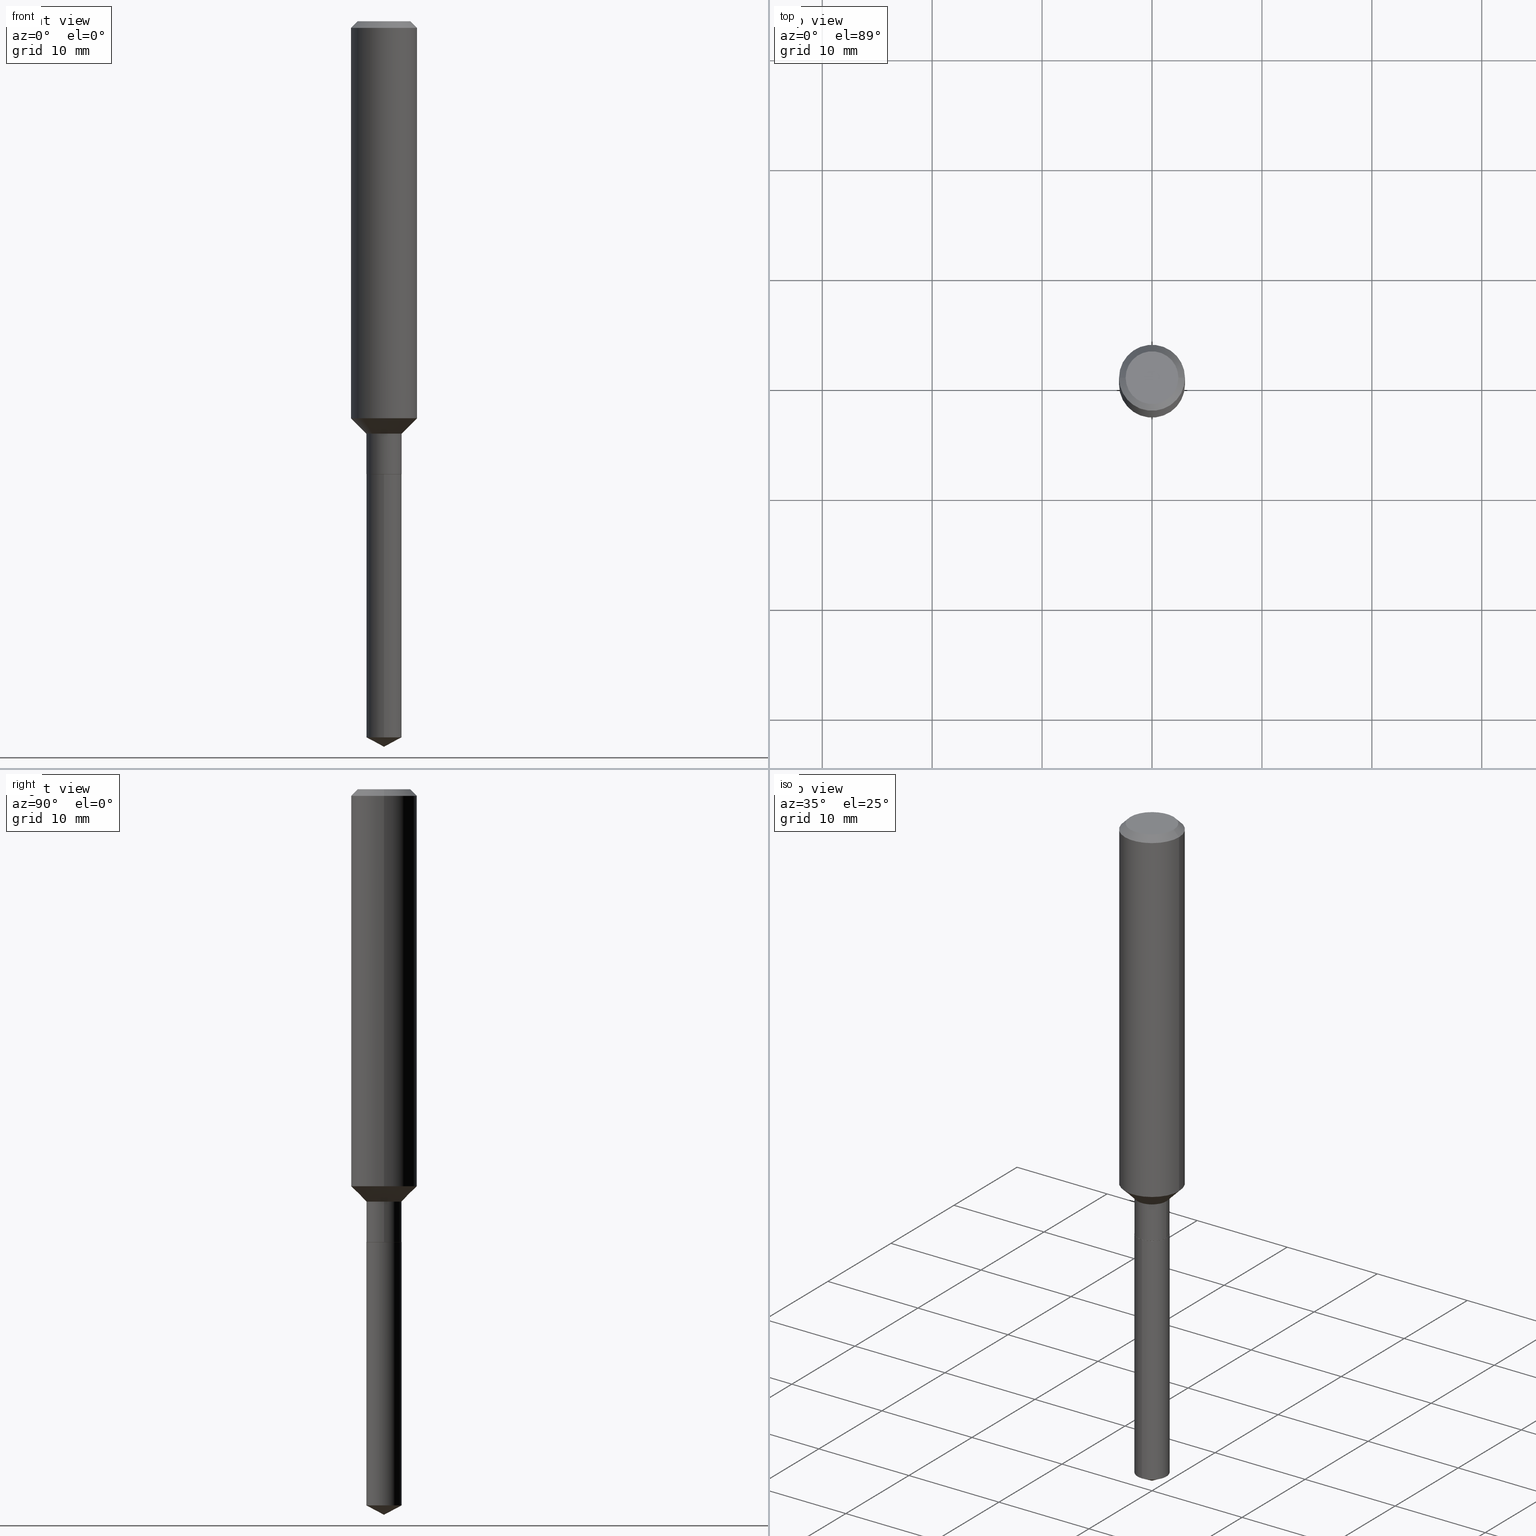
[diagram: canonical four-view strip — front | top / right | iso, engineering-drawing reading convention]
A machine part, canonical four-view strip (front | top / right | iso — engineering-drawing reading convention). The complete STEP part file that produces these views, byte-faithful:
ISO-10303-21;
HEADER;
FILE_DESCRIPTION (( 'STEP AP203' ),
    '1' );
FILE_NAME ('65002.STEP',
    '2024-04-24T19:41:37',
    ( '' ),
    ( '' ),
    'SwSTEP 2.0',
    'SolidWorks 2023',
    '' );
FILE_SCHEMA (( 'CONFIG_CONTROL_DESIGN' ));
ENDSEC;

DATA;
#1 = CARTESIAN_POINT ( 'NONE',  ( 3.966550403632290721E-29, -5.663182731603580825E-15, -1.621999999999999886 ) ) ;
#2 = DIRECTION ( 'NONE',  ( 1.000000000000000000, 0.000000000000000000, 0.000000000000000000 ) ) ;
#3 = CARTESIAN_POINT ( 'NONE',  ( 6.339023493591760755E-29, -9.094150738920952997E-15, -2.598399999999999821 ) ) ;
#4 = AXIS2_PLACEMENT_3D ( 'NONE', #259, #373, #148 ) ;
#5 = CARTESIAN_POINT ( 'NONE',  ( -0.06300000000000001432, -4.961710114740822014E-15, -1.621499999999999941 ) ) ;
#6 = DIRECTION ( 'NONE',  ( 1.000000000000000000, -6.982962677686270655E-15, 0.000000000000000000 ) ) ;
#7 = EDGE_CURVE ( 'NONE', #159, #63, #409, .T. ) ;
#8 = PERSON_AND_ORGANIZATION ( #54, #386 ) ;
#9 = CARTESIAN_POINT ( 'NONE',  ( 5.776197320209328408E-31, -8.246878922347560526E-17, -0.02362000000000014435 ) ) ;
#10 = ORIENTED_EDGE ( 'NONE', *, *, #312, .F. ) ;
#11 = LINE ( 'NONE', #161, #420 ) ;
#12 = EDGE_CURVE ( 'NONE', #135, #207, #103, .T. ) ;
#13 = CARTESIAN_POINT ( 'NONE',  ( 3.966550403632290721E-29, -5.663182731603580825E-15, -1.621999999999999886 ) ) ;
#14 = FACE_OUTER_BOUND ( 'NONE', #236, .T. ) ;
#15 = CIRCLE ( 'NONE', #410, 0.06250000000000000000 ) ;
#16 = CIRCLE ( 'NONE', #47, 0.06300000000000000044 ) ;
#17 = CARTESIAN_POINT ( 'NONE',  ( 5.776197320209328408E-31, -8.246878922347560526E-17, -0.02362000000000014435 ) ) ;
#18 = DIRECTION ( 'NONE',  ( -6.982962677686265133E-15, -1.000000000000000000, 3.541896320645526948E-15 ) ) ;
#19 = APPROVAL ( #195, 'UNSPECIFIED' ) ;
#20 = CARTESIAN_POINT ( 'NONE',  ( 0.000000000000000000, 0.000000000000000000, 0.000000000000000000 ) ) ;
#21 = CONICAL_SURFACE ( 'NONE', #470, 0.06250000000000000000, 0.7853981633975507526 ) ;
#22 = AXIS2_PLACEMENT_3D ( 'NONE', #167, #321, #475 ) ;
#23 = DIRECTION ( 'NONE',  ( -2.445468806185136597E-29, 3.491481338843145583E-15, 1.000000000000000000 ) ) ;
#24 = CC_DESIGN_PERSON_AND_ORGANIZATION_ASSIGNMENT ( #199, #193, ( #239 ) ) ;
#25 = CARTESIAN_POINT ( 'NONE',  ( 4.476419235289259333E-16, 0.06299999999999433831, -1.622000000000000108 ) ) ;
#26 = DIRECTION ( 'NONE',  ( -2.439587243531311929E-29, 3.499904071321179502E-15, 1.000000000000000000 ) ) ;
#27 = APPROVAL_DATE_TIME ( #146, #448 ) ;
#28 = CLOSED_SHELL ( 'NONE', ( #94, #320, #447, #242, #255 ) ) ;
#29 = AXIS2_PLACEMENT_3D ( 'NONE', #446, #453, #2 ) ;
#30 = ORIENTED_EDGE ( 'NONE', *, *, #121, .T. ) ;
#31 = ORIENTED_EDGE ( 'NONE', *, *, #312, .T. ) ;
#32 = APPLICATION_PROTOCOL_DEFINITION ( 'international standard', 'config_control_design', 1994, #230 ) ;
#33 = CARTESIAN_POINT ( 'NONE',  ( -0.06299999999999998657, -4.709625162076346643E-15, -1.477099999999999858 ) ) ;
#34 = APPROVAL_ROLE ( '' ) ;
#35 = DIRECTION ( 'NONE',  ( -2.438088387897960049E-29, 3.491481338843145188E-15, 1.000000000000000000 ) ) ;
#36 = VECTOR ( 'NONE', #89, 39.37007874015748143 ) ;
#37 = EDGE_CURVE ( 'NONE', #473, #342, #266, .T. ) ;
#38 = CYLINDRICAL_SURFACE ( 'NONE', #438, 0.1181000000000000799 ) ;
#39 = DIRECTION ( 'NONE',  ( -2.439587243531311929E-29, 3.499904071321179502E-15, 1.000000000000000000 ) ) ;
#40 = EDGE_CURVE ( 'NONE', #66, #295, #406, .T. ) ;
#41 = FACE_OUTER_BOUND ( 'NONE', #417, .T. ) ;
#42 = CIRCLE ( 'NONE', #251, 0.1180999999999999966 ) ;
#43 = EDGE_LOOP ( 'NONE', ( #172, #101, #30, #221 ) ) ;
#44 = DIRECTION ( 'NONE',  ( -2.445468806185136597E-29, 3.491481338843145583E-15, 1.000000000000000000 ) ) ;
#45 = DIRECTION ( 'NONE',  ( -2.445468806185136597E-29, 3.491481338843145583E-15, 1.000000000000000000 ) ) ;
#46 = FACE_OUTER_BOUND ( 'NONE', #445, .T. ) ;
#47 = AXIS2_PLACEMENT_3D ( 'NONE', #191, #39, #345 ) ;
#48 = FACE_OUTER_BOUND ( 'NONE', #78, .T. ) ;
#49 = CC_DESIGN_PERSON_AND_ORGANIZATION_ASSIGNMENT ( #300, #415, ( #439 ) ) ;
#50 = ORIENTED_EDGE ( 'NONE', *, *, #37, .T. ) ;
#51 = DIRECTION ( 'NONE',  ( -2.445468806185136597E-29, 3.491481338843145583E-15, 1.000000000000000000 ) ) ;
#52 = DIMENSIONAL_EXPONENTS ( 1.000000000000000000, 0.000000000000000000, 0.000000000000000000, 0.000000000000000000, 0.000000000000000000, 0.000000000000000000, 0.000000000000000000 ) ;
#53 = DESIGN_CONTEXT ( 'detailed design', #153, 'design' ) ;
#54 = PERSON ( 'UNSPECIFIED', 'UNSPECIFIED', 'UNSPECIFIED', ('UNSPECIFIED'), ('UNSPECIFIED'), ('UNSPECIFIED') ) ;
#55 = DIRECTION ( 'NONE',  ( -0.7071067811865459074, 2.468850131082239706E-15, -0.7071067811865492381 ) ) ;
#56 = ADVANCED_FACE ( 'NONE', ( #109 ), #288, .F. ) ;
#57 = EDGE_LOOP ( 'NONE', ( #346, #375, #232, #149 ) ) ;
#58 = AXIS2_PLACEMENT_3D ( 'NONE', #359, #59, #132 ) ;
#59 = DIRECTION ( 'NONE',  ( 2.438088387897960049E-29, -3.491481338843145188E-15, -1.000000000000000000 ) ) ;
#60 = LOCAL_TIME ( 15, 41, 37.00000000000000000, #428 ) ;
#61 = DATE_AND_TIME ( #403, #171 ) ;
#62 = PRODUCT ( '65002', '65002', '', ( #293 ) ) ;
#63 = VERTEX_POINT ( 'NONE', #186 ) ;
#64 = ORIENTED_EDGE ( 'NONE', *, *, #357, .T. ) ;
#65 = FACE_OUTER_BOUND ( 'NONE', #252, .T. ) ;
#66 = VERTEX_POINT ( 'NONE', #143 ) ;
#67 = DATE_AND_TIME ( #408, #158 ) ;
#68 = CIRCLE ( 'NONE', #476, 0.09447999999999998066 ) ;
#69 = CIRCLE ( 'NONE', #318, 0.06299999999999998657 ) ;
#70 = ORIENTED_EDGE ( 'NONE', *, *, #147, .T. ) ;
#71 = CC_DESIGN_SECURITY_CLASSIFICATION ( #239, ( #439 ) ) ;
#72 =( NAMED_UNIT ( * ) PLANE_ANGLE_UNIT ( ) SI_UNIT ( $, .RADIAN. ) );
#73 = EDGE_LOOP ( 'NONE', ( #50, #64, #311, #114 ) ) ;
#74 = SECURITY_CLASSIFICATION_LEVEL ( 'unclassified' ) ;
#75 = CARTESIAN_POINT ( 'NONE',  ( 0.06250000000000000000, -6.099617898958972494E-15, -1.621999999999999886 ) ) ;
#76 = EDGE_CURVE ( 'NONE', #119, #342, #365, .T. ) ;
#77 = CIRCLE ( 'NONE', #307, 0.1181000000000001632 ) ;
#78 = EDGE_LOOP ( 'NONE', ( #362, #433, #286 ) ) ;
#79 = CIRCLE ( 'NONE', #90, 0.06250000000000000000 ) ;
#80 = DIRECTION ( 'NONE',  ( -2.445468806185136597E-29, 3.491481338843145583E-15, 1.000000000000000000 ) ) ;
#81 = DIRECTION ( 'NONE',  ( 1.000000000000000000, -6.982962677686266711E-15, 4.876176775795936353E-29 ) ) ;
#82 = EDGE_CURVE ( 'NONE', #366, #66, #464, .T. ) ;
#83 = DIRECTION ( 'NONE',  ( 2.439587243531311368E-29, -3.499904071321179897E-15, -1.000000000000000000 ) ) ;
#84 = AXIS2_PLACEMENT_3D ( 'NONE', #229, #155, #305 ) ;
#85 = ORIENTED_EDGE ( 'NONE', *, *, #147, .F. ) ;
#86 = CARTESIAN_POINT ( 'NONE',  ( 0.06300000000000000044, -6.101363639628395575E-15, -1.621499999999999941 ) ) ;
#87 = DIRECTION ( 'NONE',  ( -2.445468806185136597E-29, 3.491481338843145583E-15, 1.000000000000000000 ) ) ;
#88 = APPROVAL ( #137, 'UNSPECIFIED' ) ;
#89 = DIRECTION ( 'NONE',  ( 6.273719981627778698E-15, 0.8829475928589315403, 0.4694715627858822571 ) ) ;
#90 = AXIS2_PLACEMENT_3D ( 'NONE', #241, #278, #130 ) ;
#91 = ORIENTED_EDGE ( 'NONE', *, *, #178, .T. ) ;
#92 = CARTESIAN_POINT ( 'NONE',  ( 6.358270590070596415E-29, -9.066827394762210825E-15, -2.598399999999999821 ) ) ;
#93 = ADVANCED_BREP_SHAPE_REPRESENTATION ( '65002', ( #231, #392, #29 ), #104 ) ;
#94 = ADVANCED_FACE ( 'NONE', ( #65 ), #416, .T. ) ;
#95 = CARTESIAN_POINT ( 'NONE',  ( -0.1181000000000000799, 8.391509709326788873E-16, -5.809262341591047988E-30 ) ) ;
#96 = CC_DESIGN_PERSON_AND_ORGANIZATION_ASSIGNMENT ( #455, #377, ( #439 ) ) ;
#97 = CARTESIAN_POINT ( 'NONE',  ( 3.966550403632290721E-29, -5.663182731603580825E-15, -1.621999999999999886 ) ) ;
#98 = ORIENTED_EDGE ( 'NONE', *, *, #376, .F. ) ;
#99 = CONICAL_SURFACE ( 'NONE', #260, 74.04434902938425012, 1.082104136236490488 ) ;
#100 = VERTEX_POINT ( 'NONE', #177 ) ;
#101 = ORIENTED_EDGE ( 'NONE', *, *, #124, .T. ) ;
#102 = PERSON_AND_ORGANIZATION ( #54, #386 ) ;
#103 = LINE ( 'NONE', #378, #430 ) ;
#104 =( GEOMETRIC_REPRESENTATION_CONTEXT ( 3 ) GLOBAL_UNCERTAINTY_ASSIGNED_CONTEXT ( ( #487 ) ) GLOBAL_UNIT_ASSIGNED_CONTEXT ( ( #372, #72, #140 ) ) REPRESENTATION_CONTEXT ( 'NONE', 'WORKASPACE' ) );
#105 = LINE ( 'NONE', #75, #237 ) ;
#106 = APPROVAL_DATE_TIME ( #61, #88 ) ;
#107 = DIRECTION ( 'NONE',  ( 1.000000000000000000, -6.982962677686265922E-15, 4.876176775795935793E-29 ) ) ;
#108 = EDGE_CURVE ( 'NONE', #462, #66, #297, .T. ) ;
#109 = FACE_OUTER_BOUND ( 'NONE', #330, .T. ) ;
#110 = LINE ( 'NONE', #387, #118 ) ;
#111 = COORDINATED_UNIVERSAL_TIME_OFFSET ( 5, 0, .BEHIND. ) ;
#112 = PRODUCT_DEFINITION ( 'UNKNOWN', '', #439, #53 ) ;
#113 = DIRECTION ( 'NONE',  ( 1.000000000000000000, -6.982962677686270655E-15, 0.000000000000000000 ) ) ;
#114 = ORIENTED_EDGE ( 'NONE', *, *, #250, .F. ) ;
#115 = CARTESIAN_POINT ( 'NONE',  ( 0.000000000000000000, 0.000000000000000000, 0.000000000000000000 ) ) ;
#116 = APPROVAL_ROLE ( '' ) ;
#117 = CARTESIAN_POINT ( 'NONE',  ( 3.966550403632290721E-29, -5.663182731603580825E-15, -1.621999999999999886 ) ) ;
#118 = VECTOR ( 'NONE', #240, 39.37007874015748143 ) ;
#119 = VERTEX_POINT ( 'NONE', #456 ) ;
#120 = CARTESIAN_POINT ( 'NONE',  ( 0.000000000000000000, 0.000000000000000000, 0.000000000000000000 ) ) ;
#121 = EDGE_CURVE ( 'NONE', #131, #159, #105, .T. ) ;
#122 = DIRECTION ( 'NONE',  ( 1.000000000000000000, -6.982962677686272233E-15, 0.000000000000000000 ) ) ;
#123 = CARTESIAN_POINT ( 'NONE',  ( 6.339023493591760755E-29, -9.094150738920952997E-15, -2.598399999999999821 ) ) ;
#124 = EDGE_CURVE ( 'NONE', #100, #131, #15, .T. ) ;
#125 = VECTOR ( 'NONE', #442, 39.37007874015748143 ) ;
#126 = VERTEX_POINT ( 'NONE', #190 ) ;
#127 = VERTEX_POINT ( 'NONE', #5 ) ;
#128 = EDGE_CURVE ( 'NONE', #295, #327, #156, .T. ) ;
#129 = LINE ( 'NONE', #95, #471 ) ;
#130 = DIRECTION ( 'NONE',  ( 1.000000000000000000, -6.982962677686262766E-15, 0.000000000000000000 ) ) ;
#131 = VERTEX_POINT ( 'NONE', #303 ) ;
#132 = DIRECTION ( 'NONE',  ( -1.000000000000000000, 6.982962677686265922E-15, -4.876176775795935793E-29 ) ) ;
#133 = VECTOR ( 'NONE', #461, 39.37007874015748143 ) ;
#134 = CONICAL_SURFACE ( 'NONE', #22, 74.04434902938425012, 1.082104136236490488 ) ;
#135 = VERTEX_POINT ( 'NONE', #384 ) ;
#136 = AXIS2_PLACEMENT_3D ( 'NONE', #360, #363, #444 ) ;
#137 = APPROVAL_STATUS ( 'not_yet_approved' ) ;
#138 = EDGE_LOOP ( 'NONE', ( #210, #70, #224, #218 ) ) ;
#139 = EDGE_CURVE ( 'NONE', #366, #327, #157, .T. ) ;
#140 =( NAMED_UNIT ( * ) SI_UNIT ( $, .STERADIAN. ) SOLID_ANGLE_UNIT ( ) );
#141 = ORIENTED_EDGE ( 'NONE', *, *, #128, .F. ) ;
#142 = CALENDAR_DATE ( 2024, 24, 4 ) ;
#143 = CARTESIAN_POINT ( 'NONE',  ( -4.399266486941721593E-16, -0.06300000000000897937, -2.564902305805327298 ) ) ;
#144 = ORIENTED_EDGE ( 'NONE', *, *, #250, .T. ) ;
#145 = EDGE_CURVE ( 'NONE', #135, #152, #68, .T. ) ;
#146 = DATE_AND_TIME ( #142, #217 ) ;
#147 = EDGE_CURVE ( 'NONE', #127, #119, #11, .T. ) ;
#148 = DIRECTION ( 'NONE',  ( 1.000000000000000000, -6.982962677686270655E-15, 0.000000000000000000 ) ) ;
#149 = ORIENTED_EDGE ( 'NONE', *, *, #290, .F. ) ;
#150 = PERSON_AND_ORGANIZATION_ROLE ( 'design_owner' ) ;
#151 = DIRECTION ( 'NONE',  ( -2.445468806185136597E-29, 3.491481338843145583E-15, 1.000000000000000000 ) ) ;
#152 = VERTEX_POINT ( 'NONE', #272 ) ;
#153 = APPLICATION_CONTEXT ( 'configuration controlled 3d designs of mechanical parts and assemblies' ) ;
#154 = EDGE_CURVE ( 'NONE', #159, #127, #341, .T. ) ;
#155 = DIRECTION ( 'NONE',  ( -2.439587243531311929E-29, 3.499904071321179502E-15, 1.000000000000000000 ) ) ;
#156 = CIRCLE ( 'NONE', #244, 0.06300000000000000044 ) ;
#157 = LINE ( 'NONE', #388, #279 ) ;
#158 = LOCAL_TIME ( 15, 41, 37.00000000000000000, #296 ) ;
#159 = VERTEX_POINT ( 'NONE', #86 ) ;
#160 = CARTESIAN_POINT ( 'NONE',  ( 0.1180999999999999966, -9.071566814582237199E-16, -0.02362000000000014435 ) ) ;
#161 = CARTESIAN_POINT ( 'NONE',  ( -0.06299999999999998657, 4.476419235288630216E-16, -3.098929106860590303E-30 ) ) ;
#162 = ORIENTED_EDGE ( 'NONE', *, *, #145, .F. ) ;
#163 = DIRECTION ( 'NONE',  ( 1.000000000000000000, -6.982962677686267499E-15, 4.875432709231658792E-29 ) ) ;
#164 = PRODUCT_RELATED_PRODUCT_CATEGORY ( 'detail', '', ( #62 ) ) ;
#165 = AXIS2_PLACEMENT_3D ( 'NONE', #180, #367, #223 ) ;
#166 = DIRECTION ( 'NONE',  ( 2.445468806185136597E-29, -3.491481338843145583E-15, -1.000000000000000000 ) ) ;
#167 = CARTESIAN_POINT ( 'NONE',  ( -8.969817848309522983E-28, 1.287110098040710045E-13, 36.77167874015748339 ) ) ;
#168 = ORIENTED_EDGE ( 'NONE', *, *, #304, .T. ) ;
#169 = CARTESIAN_POINT ( 'NONE',  ( 3.612201973616064901E-29, -5.157267085605210158E-15, -1.477099999999999858 ) ) ;
#170 = VECTOR ( 'NONE', #181, 39.37007874015748854 ) ;
#171 = LOCAL_TIME ( 15, 41, 37.00000000000000000, #219 ) ;
#172 = ORIENTED_EDGE ( 'NONE', *, *, #324, .F. ) ;
#173 = CARTESIAN_POINT ( 'NONE',  ( 5.776197320209328408E-31, -8.246878922347560526E-17, -0.02362000000000014435 ) ) ;
#174 = DIRECTION ( 'NONE',  ( -2.439587243531311929E-29, 3.499904071321179502E-15, 1.000000000000000000 ) ) ;
#175 = ORIENTED_EDGE ( 'NONE', *, *, #369, .T. ) ;
#176 = DIRECTION ( 'NONE',  ( -2.445468806185136597E-29, 3.491481338843145583E-15, 1.000000000000000000 ) ) ;
#177 = CARTESIAN_POINT ( 'NONE',  ( -0.06250000000000000000, -5.216444294579407796E-15, -1.621999999999999886 ) ) ;
#178 = EDGE_CURVE ( 'NONE', #342, #473, #77, .T. ) ;
#179 = CLOSED_SHELL ( 'NONE', ( #310, #425, #213, #480, #489, #397, #404, #258, #414, #328, #56, #184 ) ) ;
#180 = CARTESIAN_POINT ( 'NONE',  ( 3.612201973616064901E-29, -5.157267085605210158E-15, -1.477099999999999858 ) ) ;
#181 = DIRECTION ( 'NONE',  ( -6.165590087286847073E-15, -0.8829475928589280986, 0.4694715627858883633 ) ) ;
#182 = PERSON_AND_ORGANIZATION ( #54, #386 ) ;
#183 = DIRECTION ( 'NONE',  ( 0.7071067811865459074, -7.319954787623251312E-15, -0.7071067811865492381 ) ) ;
#184 = ADVANCED_FACE ( 'NONE', ( #234 ), #21, .T. ) ;
#185 = APPROVAL_ROLE ( '' ) ;
#186 = CARTESIAN_POINT ( 'NONE',  ( 0.06299999999999998657, -5.597193734299444834E-15, -1.477099999999999858 ) ) ;
#187 = CARTESIAN_POINT ( 'NONE',  ( 0.000000000000000000, 0.000000000000000000, 0.000000000000000000 ) ) ;
#188 = AXIS2_PLACEMENT_3D ( 'NONE', #120, #196, #200 ) ;
#189 = CIRCLE ( 'NONE', #280, 0.1180999999999999966 ) ;
#190 = CARTESIAN_POINT ( 'NONE',  ( -0.1180999999999999966, -1.684526655596535031E-15, -0.02362000000000014435 ) ) ;
#191 = CARTESIAN_POINT ( 'NONE',  ( 3.966550403632290721E-29, -5.663182731603580825E-15, -1.621999999999999886 ) ) ;
#192 = ORIENTED_EDGE ( 'NONE', *, *, #40, .F. ) ;
#193 = PERSON_AND_ORGANIZATION_ROLE ( 'classification_officer' ) ;
#194 = CARTESIAN_POINT ( 'NONE',  ( 6.266842840771226956E-29, -8.963250350549775101E-15, -2.564902305805327298 ) ) ;
#195 = APPROVAL_STATUS ( 'not_yet_approved' ) ;
#196 = DIRECTION ( 'NONE',  ( -2.445468806185136597E-29, 3.491481338843145583E-15, 1.000000000000000000 ) ) ;
#197 = AXIS2_PLACEMENT_3D ( 'NONE', #169, #249, #122 ) ;
#198 = ORIENTED_EDGE ( 'NONE', *, *, #76, .F. ) ;
#199 = PERSON_AND_ORGANIZATION ( #54, #386 ) ;
#200 = DIRECTION ( 'NONE',  ( 1.000000000000000000, -6.982962677686266711E-15, 4.876176775795936353E-29 ) ) ;
#201 = CC_DESIGN_PERSON_AND_ORGANIZATION_ASSIGNMENT ( #182, #150, ( #62 ) ) ;
#202 = DIRECTION ( 'NONE',  ( 1.000000000000000000, -6.982962677686267499E-15, 4.875432709231658792E-29 ) ) ;
#203 = CARTESIAN_POINT ( 'NONE',  ( 5.776197320209328408E-31, -8.246878922347560526E-17, -0.02362000000000014435 ) ) ;
#204 = AXIS2_PLACEMENT_3D ( 'NONE', #429, #468, #6 ) ;
#205 = AXIS2_PLACEMENT_3D ( 'NONE', #203, #276, #246 ) ;
#206 = DIRECTION ( 'NONE',  ( 1.000000000000000000, -6.982962677686266711E-15, 0.000000000000000000 ) ) ;
#207 = VERTEX_POINT ( 'NONE', #160 ) ;
#208 = FACE_OUTER_BOUND ( 'NONE', #437, .T. ) ;
#209 = DIRECTION ( 'NONE',  ( 1.000000000000000000, -6.982962677686266711E-15, 0.000000000000000000 ) ) ;
#210 = ORIENTED_EDGE ( 'NONE', *, *, #154, .T. ) ;
#211 = CONICAL_SURFACE ( 'NONE', #401, 0.1180999999999999966, 0.7853981633974459475 ) ;
#212 = DIRECTION ( 'NONE',  ( 1.000000000000000000, -6.982962677686266711E-15, 4.876176775795936353E-29 ) ) ;
#213 = ADVANCED_FACE ( 'NONE', ( #469 ), #38, .T. ) ;
#214 = FACE_OUTER_BOUND ( 'NONE', #138, .T. ) ;
#215 = COORDINATED_UNIVERSAL_TIME_OFFSET ( 5, 0, .BEHIND. ) ;
#216 = DIRECTION ( 'NONE',  ( -6.982962677686265922E-15, -1.000000000000000000, 4.336266656609941617E-15 ) ) ;
#217 = LOCAL_TIME ( 15, 41, 37.00000000000000000, #215 ) ;
#218 = ORIENTED_EDGE ( 'NONE', *, *, #7, .F. ) ;
#219 = COORDINATED_UNIVERSAL_TIME_OFFSET ( 5, 0, .BEHIND. ) ;
#220 = EDGE_CURVE ( 'NONE', #63, #473, #271, .T. ) ;
#221 = ORIENTED_EDGE ( 'NONE', *, *, #265, .F. ) ;
#222 = CC_DESIGN_DATE_AND_TIME_ASSIGNMENT ( #67, #405, ( #112 ) ) ;
#223 = DIRECTION ( 'NONE',  ( 1.000000000000000000, -6.982962677686272233E-15, 0.000000000000000000 ) ) ;
#224 = ORIENTED_EDGE ( 'NONE', *, *, #369, .F. ) ;
#225 = ORIENTED_EDGE ( 'NONE', *, *, #265, .T. ) ;
#226 = DIRECTION ( 'NONE',  ( 0.7071067811866199593, -2.468850131083015945E-15, 0.7071067811864750752 ) ) ;
#227 = AXIS2_PLACEMENT_3D ( 'NONE', #368, #26, #216 ) ;
#228 = AXIS2_PLACEMENT_3D ( 'NONE', #187, #176, #333 ) ;
#229 = CARTESIAN_POINT ( 'NONE',  ( 3.966550403632290721E-29, -5.663182731603580825E-15, -1.621999999999999886 ) ) ;
#230 = APPLICATION_CONTEXT ( 'configuration controlled 3d designs of mechanical parts and assemblies' ) ;
#231 = MANIFOLD_SOLID_BREP ( 'Body-Move/Copy2[1]', #28 ) ;
#232 = ORIENTED_EDGE ( 'NONE', *, *, #40, .T. ) ;
#233 = CC_DESIGN_PERSON_AND_ORGANIZATION_ASSIGNMENT ( #287, #253, ( #112 ) ) ;
#234 = FACE_OUTER_BOUND ( 'NONE', #43, .T. ) ;
#235 = CYLINDRICAL_SURFACE ( 'NONE', #84, 0.06300000000000000044 ) ;
#236 = EDGE_LOOP ( 'NONE', ( #274, #91, #144, #485 ) ) ;
#237 = VECTOR ( 'NONE', #226, 39.37007874015748143 ) ;
#238 = DIRECTION ( 'NONE',  ( 6.982962677686265922E-15, 1.000000000000000000, -3.499904071321179897E-15 ) ) ;
#239 = SECURITY_CLASSIFICATION ( '', '', #74 ) ;
#240 = DIRECTION ( 'NONE',  ( -2.445468806185136877E-29, 3.491481338843145188E-15, 1.000000000000000000 ) ) ;
#241 = CARTESIAN_POINT ( 'NONE',  ( 3.966550403632290721E-29, -5.663182731603580825E-15, -1.621999999999999886 ) ) ;
#242 = ADVANCED_FACE ( 'NONE', ( #463 ), #235, .T. ) ;
#243 = CARTESIAN_POINT ( 'NONE',  ( -0.1181000000000001632, -4.125735492902273590E-15, -1.421999999999999931 ) ) ;
#244 = AXIS2_PLACEMENT_3D ( 'NONE', #334, #483, #413 ) ;
#245 = AXIS2_PLACEMENT_3D ( 'NONE', #194, #347, #270 ) ;
#246 = DIRECTION ( 'NONE',  ( -1.000000000000000000, 6.982962677686266711E-15, 0.000000000000000000 ) ) ;
#247 = PRODUCT_DEFINITION_SHAPE ( 'NONE', 'NONE',  #112 ) ;
#248 = LINE ( 'NONE', #323, #125 ) ;
#249 = DIRECTION ( 'NONE',  ( -2.445468806185136597E-29, 3.491481338843145583E-15, 1.000000000000000000 ) ) ;
#250 = EDGE_CURVE ( 'NONE', #473, #207, #110, .T. ) ;
#251 = AXIS2_PLACEMENT_3D ( 'NONE', #173, #477, #209 ) ;
#252 = EDGE_LOOP ( 'NONE', ( #335, #486, #141, #192 ) ) ;
#253 = PERSON_AND_ORGANIZATION_ROLE ( 'creator' ) ;
#254 = DIRECTION ( 'NONE',  ( -2.445468806185136877E-29, 3.491481338843145188E-15, 1.000000000000000000 ) ) ;
#255 = ADVANCED_FACE ( 'NONE', ( #41 ), #309, .F. ) ;
#256 = ORIENTED_EDGE ( 'NONE', *, *, #376, .T. ) ;
#257 =( LENGTH_UNIT ( ) NAMED_UNIT ( * ) SI_UNIT ( $, .METRE. ) );
#258 = ADVANCED_FACE ( 'NONE', ( #14 ), #466, .T. ) ;
#259 = CARTESIAN_POINT ( 'NONE',  ( 3.477456642395264859E-29, -4.964886463834953365E-15, -1.421999999999999931 ) ) ;
#260 = AXIS2_PLACEMENT_3D ( 'NONE', #479, #174, #18 ) ;
#261 = DIRECTION ( 'NONE',  ( 1.000000000000000000, -6.982962677686262766E-15, 0.000000000000000000 ) ) ;
#262 = DIRECTION ( 'NONE',  ( -6.982962677686265133E-15, -1.000000000000000000, 0.000000000000000000 ) ) ;
#263 = CALENDAR_DATE ( 2024, 24, 4 ) ;
#264 = DIRECTION ( 'NONE',  ( -2.439587243531311929E-29, 3.499904071321179502E-15, 1.000000000000000000 ) ) ;
#265 = EDGE_CURVE ( 'NONE', #127, #159, #400, .T. ) ;
#266 = CIRCLE ( 'NONE', #4, 0.1181000000000001632 ) ;
#267 = VECTOR ( 'NONE', #55, 39.37007874015748143 ) ;
#268 = DIRECTION ( 'NONE',  ( -2.445468806185136877E-29, 3.491481338843145188E-15, 1.000000000000000000 ) ) ;
#269 = DATE_AND_TIME ( #263, #60 ) ;
#270 = DIRECTION ( 'NONE',  ( -6.982962677686265133E-15, -1.000000000000000000, 0.000000000000000000 ) ) ;
#271 = LINE ( 'NONE', #275, #298 ) ;
#272 = CARTESIAN_POINT ( 'NONE',  ( -0.09447999999999998066, 7.009847083995354710E-16, -1.928573779297727792E-17 ) ) ;
#273 = CIRCLE ( 'NONE', #197, 0.06299999999999998657 ) ;
#274 = ORIENTED_EDGE ( 'NONE', *, *, #357, .F. ) ;
#275 = CARTESIAN_POINT ( 'NONE',  ( 0.06299999999999998657, -5.597193734299444834E-15, -1.477099999999999858 ) ) ;
#276 = DIRECTION ( 'NONE',  ( 2.445468806185136597E-29, -3.491481338843145583E-15, -1.000000000000000000 ) ) ;
#277 = ORIENTED_EDGE ( 'NONE', *, *, #124, .F. ) ;
#278 = DIRECTION ( 'NONE',  ( -2.445468806185136597E-29, 3.491481338843145583E-15, 1.000000000000000000 ) ) ;
#279 = VECTOR ( 'NONE', #313, 39.37007874015748143 ) ;
#280 = AXIS2_PLACEMENT_3D ( 'NONE', #9, #351, #206 ) ;
#281 = FACE_OUTER_BOUND ( 'NONE', #354, .T. ) ;
#282 = FACE_OUTER_BOUND ( 'NONE', #371, .T. ) ;
#283 = EDGE_CURVE ( 'NONE', #152, #135, #482, .T. ) ;
#284 = CARTESIAN_POINT ( 'NONE',  ( 4.476419235289257361E-16, 0.06299999999999104927, -2.564902305805327298 ) ) ;
#285 = CIRCLE ( 'NONE', #245, 0.06300000000000001432 ) ;
#286 = ORIENTED_EDGE ( 'NONE', *, *, #82, .F. ) ;
#287 = PERSON_AND_ORGANIZATION ( #54, #386 ) ;
#288 = PLANE ( 'NONE',  #361 ) ;
#289 = ORIENTED_EDGE ( 'NONE', *, *, #121, .F. ) ;
#290 = EDGE_CURVE ( 'NONE', #327, #295, #16, .T. ) ;
#291 = EDGE_CURVE ( 'NONE', #66, #366, #285, .T. ) ;
#292 = ORIENTED_EDGE ( 'NONE', *, *, #37, .F. ) ;
#293 = MECHANICAL_CONTEXT ( 'NONE', #230, 'mechanical' ) ;
#294 = ORIENTED_EDGE ( 'NONE', *, *, #12, .T. ) ;
#295 = VERTEX_POINT ( 'NONE', #432 ) ;
#296 = COORDINATED_UNIVERSAL_TIME_OFFSET ( 5, 0, .BEHIND. ) ;
#297 = LINE ( 'NONE', #3, #170 ) ;
#298 = VECTOR ( 'NONE', #353, 39.37007874015748143 ) ;
#299 = AXIS2_PLACEMENT_3D ( 'NONE', #355, #80, #202 ) ;
#300 = PERSON_AND_ORGANIZATION ( #54, #386 ) ;
#301 = ORIENTED_EDGE ( 'NONE', *, *, #12, .F. ) ;
#302 = ORIENTED_EDGE ( 'NONE', *, *, #291, .F. ) ;
#303 = CARTESIAN_POINT ( 'NONE',  ( 0.06250000000000000000, -6.099617898958972494E-15, -1.621999999999999886 ) ) ;
#304 = EDGE_CURVE ( 'NONE', #207, #126, #189, .T. ) ;
#305 = DIRECTION ( 'NONE',  ( -6.982962677686265922E-15, -1.000000000000000000, 4.336266656609941617E-15 ) ) ;
#306 = EDGE_LOOP ( 'NONE', ( #175, #441, #292, #407 ) ) ;
#307 = AXIS2_PLACEMENT_3D ( 'NONE', #423, #45, #113 ) ;
#308 = CC_DESIGN_APPROVAL ( #88, ( #112 ) ) ;
#309 = PLANE ( 'NONE',  #370 ) ;
#310 = ADVANCED_FACE ( 'NONE', ( #281 ), #350, .T. ) ;
#311 = ORIENTED_EDGE ( 'NONE', *, *, #304, .F. ) ;
#312 = EDGE_CURVE ( 'NONE', #119, #63, #273, .T. ) ;
#313 = DIRECTION ( 'NONE',  ( -2.439587243531311929E-29, 3.499904071321179897E-15, 1.000000000000000000 ) ) ;
#314 = DIRECTION ( 'NONE',  ( 1.000000000000000000, -6.982962677686270655E-15, 0.000000000000000000 ) ) ;
#315 = ORIENTED_EDGE ( 'NONE', *, *, #290, .T. ) ;
#316 = ORIENTED_EDGE ( 'NONE', *, *, #145, .T. ) ;
#317 = DIRECTION ( 'NONE',  ( 1.000000000000000000, -6.982962677686262766E-15, 0.000000000000000000 ) ) ;
#318 = AXIS2_PLACEMENT_3D ( 'NONE', #481, #51, #398 ) ;
#319 = PLANE ( 'NONE',  #58 ) ;
#320 = ADVANCED_FACE ( 'NONE', ( #358 ), #99, .T. ) ;
#321 = DIRECTION ( 'NONE',  ( -2.439587243531311929E-29, 3.499904071321179502E-15, 1.000000000000000000 ) ) ;
#322 = ORIENTED_EDGE ( 'NONE', *, *, #7, .T. ) ;
#323 = CARTESIAN_POINT ( 'NONE',  ( -0.06250000000000000000, -5.219093521753518997E-15, -1.621999999999999886 ) ) ;
#324 = EDGE_CURVE ( 'NONE', #100, #127, #248, .T. ) ;
#325 = CYLINDRICAL_SURFACE ( 'NONE', #343, 0.06299999999999998657 ) ;
#326 = FACE_OUTER_BOUND ( 'NONE', #443, .T. ) ;
#327 = VERTEX_POINT ( 'NONE', #25 ) ;
#328 = ADVANCED_FACE ( 'NONE', ( #396 ), #319, .F. ) ;
#329 = CARTESIAN_POINT ( 'NONE',  ( 3.966550403632290721E-29, -5.663182731603580825E-15, -1.621999999999999886 ) ) ;
#330 = EDGE_LOOP ( 'NONE', ( #98, #277 ) ) ;
#331 = CONICAL_SURFACE ( 'NONE', #165, 0.06299999999999998657, 0.7853981633974508325 ) ;
#332 = ORIENTED_EDGE ( 'NONE', *, *, #283, .F. ) ;
#333 = DIRECTION ( 'NONE',  ( 1.000000000000000000, -6.982962677686266711E-15, 4.876176775795936353E-29 ) ) ;
#334 = CARTESIAN_POINT ( 'NONE',  ( 3.966550403632290721E-29, -5.663182731603580825E-15, -1.621999999999999886 ) ) ;
#335 = ORIENTED_EDGE ( 'NONE', *, *, #291, .T. ) ;
#336 = APPLICATION_PROTOCOL_DEFINITION ( 'international standard', 'config_control_design', 1994, #153 ) ;
#337 = CARTESIAN_POINT ( 'NONE',  ( -4.399266486941951349E-16, -0.06300000000000566258, -1.621999999999999442 ) ) ;
#338 = ORIENTED_EDGE ( 'NONE', *, *, #283, .T. ) ;
#339 = APPROVAL_STATUS ( 'not_yet_approved' ) ;
#340 = DIRECTION ( 'NONE',  ( -0.7071067811865493491, 7.493145998870360471E-15, 0.7071067811865457964 ) ) ;
#341 = CIRCLE ( 'NONE', #204, 0.06300000000000000044 ) ;
#342 = VERTEX_POINT ( 'NONE', #243 ) ;
#343 = AXIS2_PLACEMENT_3D ( 'NONE', #20, #87, #212 ) ;
#344 = ORIENTED_EDGE ( 'NONE', *, *, #390, .T. ) ;
#345 = DIRECTION ( 'NONE',  ( -6.982962677686265922E-15, -1.000000000000000000, 4.336266656609941617E-15 ) ) ;
#346 = ORIENTED_EDGE ( 'NONE', *, *, #139, .F. ) ;
#347 = DIRECTION ( 'NONE',  ( -2.439587243531311929E-29, 3.499904071321179502E-15, 1.000000000000000000 ) ) ;
#348 = AXIS2_PLACEMENT_3D ( 'NONE', #451, #264, #262 ) ;
#349 = SHAPE_DEFINITION_REPRESENTATION ( #247, #93 ) ;
#350 = CONICAL_SURFACE ( 'NONE', #411, 0.06250000000000000000, 0.7853981633975507526 ) ;
#351 = DIRECTION ( 'NONE',  ( -2.445468806185136597E-29, 3.491481338843145583E-15, 1.000000000000000000 ) ) ;
#352 = APPROVAL_DATE_TIME ( #383, #19 ) ;
#353 = DIRECTION ( 'NONE',  ( 0.7071067811865493491, -2.468850131082275993E-15, 0.7071067811865457964 ) ) ;
#354 = EDGE_LOOP ( 'NONE', ( #256, #427, #435, #289 ) ) ;
#355 = CARTESIAN_POINT ( 'NONE',  ( 4.716267017698007905E-46, -6.733579360998555036E-32, -1.928573779297252010E-17 ) ) ;
#356 = LINE ( 'NONE', #92, #36 ) ;
#357 = EDGE_CURVE ( 'NONE', #342, #126, #129, .T. ) ;
#358 = FACE_OUTER_BOUND ( 'NONE', #449, .T. ) ;
#359 = CARTESIAN_POINT ( 'NONE',  ( 2.358133508849003952E-46, -3.366789680499277518E-32, -9.642868896486260050E-18 ) ) ;
#360 = CARTESIAN_POINT ( 'NONE',  ( 3.612201973616064901E-29, -5.157267085605210158E-15, -1.477099999999999858 ) ) ;
#361 = AXIS2_PLACEMENT_3D ( 'NONE', #1, #35, #107 ) ;
#362 = ORIENTED_EDGE ( 'NONE', *, *, #419, .F. ) ;
#363 = DIRECTION ( 'NONE',  ( -2.445468806185136597E-29, 3.491481338843145583E-15, 1.000000000000000000 ) ) ;
#364 = ORIENTED_EDGE ( 'NONE', *, *, #178, .F. ) ;
#365 = LINE ( 'NONE', #33, #385 ) ;
#366 = VERTEX_POINT ( 'NONE', #284 ) ;
#367 = DIRECTION ( 'NONE',  ( -2.445468806185136597E-29, 3.491481338843145583E-15, 1.000000000000000000 ) ) ;
#368 = CARTESIAN_POINT ( 'NONE',  ( 3.966550403632290721E-29, -5.663182731603580825E-15, -1.621999999999999886 ) ) ;
#369 = EDGE_CURVE ( 'NONE', #63, #119, #69, .T. ) ;
#370 = AXIS2_PLACEMENT_3D ( 'NONE', #13, #83, #238 ) ;
#371 = EDGE_LOOP ( 'NONE', ( #85, #225, #322, #10 ) ) ;
#372 =( CONVERSION_BASED_UNIT ( 'INCH', #459 ) LENGTH_UNIT ( ) NAMED_UNIT ( #52 ) );
#373 = DIRECTION ( 'NONE',  ( -2.445468806185136597E-29, 3.491481338843145583E-15, 1.000000000000000000 ) ) ;
#374 = FACE_OUTER_BOUND ( 'NONE', #306, .T. ) ;
#375 = ORIENTED_EDGE ( 'NONE', *, *, #82, .T. ) ;
#376 = EDGE_CURVE ( 'NONE', #131, #100, #79, .T. ) ;
#377 = PERSON_AND_ORGANIZATION_ROLE ( 'creator' ) ;
#378 = CARTESIAN_POINT ( 'NONE',  ( 0.1180999999999999966, -8.926936027602933910E-16, -0.02362000000000014435 ) ) ;
#379 = CONICAL_SURFACE ( 'NONE', #136, 0.06299999999999998657, 0.7853981633974508325 ) ;
#380 = CARTESIAN_POINT ( 'NONE',  ( 3.965327669229198480E-29, -5.661436990934160899E-15, -1.621499999999999941 ) ) ;
#381 = CARTESIAN_POINT ( 'NONE',  ( 4.716267017698007905E-46, -6.733579360998555036E-32, -1.928573779297252010E-17 ) ) ;
#382 = EDGE_CURVE ( 'NONE', #152, #126, #394, .T. ) ;
#383 = DATE_AND_TIME ( #467, #402 ) ;
#384 = CARTESIAN_POINT ( 'NONE',  ( 0.09447999999999998066, -7.704367267948738690E-16, -1.928573779296752193E-17 ) ) ;
#385 = VECTOR ( 'NONE', #340, 39.37007874015748143 ) ;
#386 = ORGANIZATION ( 'UNSPECIFIED', 'UNSPECIFIED', '' ) ;
#387 = CARTESIAN_POINT ( 'NONE',  ( 0.1181000000000000799, -8.246878922347486570E-16, 5.758764772215004644E-30 ) ) ;
#388 = CARTESIAN_POINT ( 'NONE',  ( 4.476419235289027605E-16, 0.06299999999999433831, -1.622000000000000108 ) ) ;
#389 = ORIENTED_EDGE ( 'NONE', *, *, #419, .T. ) ;
#390 = EDGE_CURVE ( 'NONE', #126, #207, #42, .T. ) ;
#391 = DIRECTION ( 'NONE',  ( 1.000000000000000000, -6.982962677686262766E-15, 0.000000000000000000 ) ) ;
#392 = MANIFOLD_SOLID_BREP ( 'Body-Move/Copy2[2]', #179 ) ;
#393 = APPROVAL_PERSON_ORGANIZATION ( #102, #88, #185 ) ;
#394 = LINE ( 'NONE', #436, #267 ) ;
#395 = APPROVAL_PERSON_ORGANIZATION ( #8, #19, #116 ) ;
#396 = FACE_OUTER_BOUND ( 'NONE', #460, .T. ) ;
#397 = ADVANCED_FACE ( 'NONE', ( #282 ), #325, .T. ) ;
#398 = DIRECTION ( 'NONE',  ( 1.000000000000000000, -6.982962677686272233E-15, 0.000000000000000000 ) ) ;
#399 = DIRECTION ( 'NONE',  ( -2.445468806185136877E-29, 3.491481338843145188E-15, 1.000000000000000000 ) ) ;
#400 = CIRCLE ( 'NONE', #421, 0.06300000000000000044 ) ;
#401 = AXIS2_PLACEMENT_3D ( 'NONE', #17, #166, #474 ) ;
#402 = LOCAL_TIME ( 15, 41, 37.00000000000000000, #111 ) ;
#403 = CALENDAR_DATE ( 2024, 24, 4 ) ;
#404 = ADVANCED_FACE ( 'NONE', ( #326 ), #379, .T. ) ;
#405 = DATE_TIME_ROLE ( 'creation_date' ) ;
#406 = LINE ( 'NONE', #337, #133 ) ;
#407 = ORIENTED_EDGE ( 'NONE', *, *, #220, .F. ) ;
#408 = CALENDAR_DATE ( 2024, 24, 4 ) ;
#409 = LINE ( 'NONE', #454, #457 ) ;
#410 = AXIS2_PLACEMENT_3D ( 'NONE', #329, #151, #261 ) ;
#411 = AXIS2_PLACEMENT_3D ( 'NONE', #97, #23, #391 ) ;
#412 = CC_DESIGN_APPROVAL ( #19, ( #239 ) ) ;
#413 = DIRECTION ( 'NONE',  ( -6.982962677686265922E-15, -1.000000000000000000, 4.336266656609941617E-15 ) ) ;
#414 = ADVANCED_FACE ( 'NONE', ( #46 ), #422, .T. ) ;
#415 = PERSON_AND_ORGANIZATION_ROLE ( 'design_supplier' ) ;
#416 = CYLINDRICAL_SURFACE ( 'NONE', #227, 0.06300000000000000044 ) ;
#417 = EDGE_LOOP ( 'NONE', ( #488, #315 ) ) ;
#418 = ORIENTED_EDGE ( 'NONE', *, *, #108, .F. ) ;
#419 = EDGE_CURVE ( 'NONE', #462, #366, #356, .T. ) ;
#420 = VECTOR ( 'NONE', #268, 39.37007874015748143 ) ;
#421 = AXIS2_PLACEMENT_3D ( 'NONE', #380, #472, #314 ) ;
#422 = CONICAL_SURFACE ( 'NONE', #205, 0.1180999999999999966, 0.7853981633974459475 ) ;
#423 = CARTESIAN_POINT ( 'NONE',  ( 3.477456642395264859E-29, -4.964886463834953365E-15, -1.421999999999999931 ) ) ;
#424 = DATE_TIME_ROLE ( 'classification_date' ) ;
#425 = ADVANCED_FACE ( 'NONE', ( #208 ), #211, .T. ) ;
#426 = DIRECTION ( 'NONE',  ( -2.445468806185136597E-29, 3.491481338843145583E-15, 1.000000000000000000 ) ) ;
#427 = ORIENTED_EDGE ( 'NONE', *, *, #324, .T. ) ;
#428 = COORDINATED_UNIVERSAL_TIME_OFFSET ( 5, 0, .BEHIND. ) ;
#429 = CARTESIAN_POINT ( 'NONE',  ( 3.965327669229198480E-29, -5.661436990934160899E-15, -1.621499999999999941 ) ) ;
#430 = VECTOR ( 'NONE', #183, 39.37007874015748143 ) ;
#431 = APPROVAL_PERSON_ORGANIZATION ( #490, #448, #34 ) ;
#432 = CARTESIAN_POINT ( 'NONE',  ( -4.399266486941951349E-16, -0.06300000000000566258, -1.621999999999999442 ) ) ;
#433 = ORIENTED_EDGE ( 'NONE', *, *, #108, .T. ) ;
#434 = DIRECTION ( 'NONE',  ( -2.445468806185136597E-29, 3.491481338843145583E-15, 1.000000000000000000 ) ) ;
#435 = ORIENTED_EDGE ( 'NONE', *, *, #154, .F. ) ;
#436 = CARTESIAN_POINT ( 'NONE',  ( -0.1180999999999999966, 7.422191030112725094E-16, -0.02362000000000014435 ) ) ;
#437 = EDGE_LOOP ( 'NONE', ( #162, #294, #168, #478 ) ) ;
#438 = AXIS2_PLACEMENT_3D ( 'NONE', #115, #426, #81 ) ;
#439 = PRODUCT_DEFINITION_FORMATION_WITH_SPECIFIED_SOURCE ( 'ANY', '', #62, .NOT_KNOWN. ) ;
#440 = CARTESIAN_POINT ( 'NONE',  ( 0.1181000000000001632, -5.789574356069702416E-15, -1.421999999999999931 ) ) ;
#441 = ORIENTED_EDGE ( 'NONE', *, *, #76, .T. ) ;
#442 = DIRECTION ( 'NONE',  ( -0.7071067811866199593, 7.493145998870616062E-15, 0.7071067811864750752 ) ) ;
#443 = EDGE_LOOP ( 'NONE', ( #198, #31, #484, #364 ) ) ;
#444 = DIRECTION ( 'NONE',  ( 1.000000000000000000, -6.982962677686272233E-15, 0.000000000000000000 ) ) ;
#445 = EDGE_LOOP ( 'NONE', ( #301, #332, #452, #344 ) ) ;
#446 = CARTESIAN_POINT ( 'NONE',  ( 0.000000000000000000, 0.000000000000000000, 0.000000000000000000 ) ) ;
#447 = ADVANCED_FACE ( 'NONE', ( #48 ), #134, .T. ) ;
#448 = APPROVAL ( #339, 'UNSPECIFIED' ) ;
#449 = EDGE_LOOP ( 'NONE', ( #418, #389, #302 ) ) ;
#450 = CYLINDRICAL_SURFACE ( 'NONE', #228, 0.06299999999999998657 ) ;
#451 = CARTESIAN_POINT ( 'NONE',  ( 6.266842840771226956E-29, -8.963250350549775101E-15, -2.564902305805327298 ) ) ;
#452 = ORIENTED_EDGE ( 'NONE', *, *, #382, .T. ) ;
#453 = DIRECTION ( 'NONE',  ( 0.000000000000000000, 0.000000000000000000, 1.000000000000000000 ) ) ;
#454 = CARTESIAN_POINT ( 'NONE',  ( 0.06299999999999998657, -4.399266486942347259E-16, 3.071991368751439423E-30 ) ) ;
#455 = PERSON_AND_ORGANIZATION ( #54, #386 ) ;
#456 = CARTESIAN_POINT ( 'NONE',  ( -0.06299999999999998657, -4.961710114740822014E-15, -1.477099999999999858 ) ) ;
#457 = VECTOR ( 'NONE', #254, 39.37007874015748143 ) ;
#458 = CC_DESIGN_APPROVAL ( #448, ( #439 ) ) ;
#459 = LENGTH_MEASURE_WITH_UNIT ( LENGTH_MEASURE( 0.02539999999999999897 ), #257 );
#460 = EDGE_LOOP ( 'NONE', ( #338, #316 ) ) ;
#461 = DIRECTION ( 'NONE',  ( -2.439587243531311929E-29, 3.499904071321179897E-15, 1.000000000000000000 ) ) ;
#462 = VERTEX_POINT ( 'NONE', #123 ) ;
#463 = FACE_OUTER_BOUND ( 'NONE', #57, .T. ) ;
#464 = CIRCLE ( 'NONE', #348, 0.06300000000000001432 ) ;
#465 = CC_DESIGN_DATE_AND_TIME_ASSIGNMENT ( #269, #424, ( #239 ) ) ;
#466 = CYLINDRICAL_SURFACE ( 'NONE', #188, 0.1181000000000000799 ) ;
#467 = CALENDAR_DATE ( 2024, 24, 4 ) ;
#468 = DIRECTION ( 'NONE',  ( -2.445468806185136597E-29, 3.491481338843145583E-15, 1.000000000000000000 ) ) ;
#469 = FACE_OUTER_BOUND ( 'NONE', #73, .T. ) ;
#470 = AXIS2_PLACEMENT_3D ( 'NONE', #117, #434, #317 ) ;
#471 = VECTOR ( 'NONE', #399, 39.37007874015748143 ) ;
#472 = DIRECTION ( 'NONE',  ( -2.445468806185136597E-29, 3.491481338843145583E-15, 1.000000000000000000 ) ) ;
#473 = VERTEX_POINT ( 'NONE', #440 ) ;
#474 = DIRECTION ( 'NONE',  ( -1.000000000000000000, 6.982962677686266711E-15, 0.000000000000000000 ) ) ;
#475 = DIRECTION ( 'NONE',  ( -6.982962677686265133E-15, -1.000000000000000000, 3.541896320645526948E-15 ) ) ;
#476 = AXIS2_PLACEMENT_3D ( 'NONE', #381, #44, #163 ) ;
#477 = DIRECTION ( 'NONE',  ( -2.445468806185136597E-29, 3.491481338843145583E-15, 1.000000000000000000 ) ) ;
#478 = ORIENTED_EDGE ( 'NONE', *, *, #382, .F. ) ;
#479 = CARTESIAN_POINT ( 'NONE',  ( -8.969817848309522983E-28, 1.287110098040710045E-13, 36.77167874015748339 ) ) ;
#480 = ADVANCED_FACE ( 'NONE', ( #374 ), #331, .T. ) ;
#481 = CARTESIAN_POINT ( 'NONE',  ( 3.612201973616064901E-29, -5.157267085605210158E-15, -1.477099999999999858 ) ) ;
#482 = CIRCLE ( 'NONE', #299, 0.09447999999999998066 ) ;
#483 = DIRECTION ( 'NONE',  ( -2.439587243531311929E-29, 3.499904071321179502E-15, 1.000000000000000000 ) ) ;
#484 = ORIENTED_EDGE ( 'NONE', *, *, #220, .T. ) ;
#485 = ORIENTED_EDGE ( 'NONE', *, *, #390, .F. ) ;
#486 = ORIENTED_EDGE ( 'NONE', *, *, #139, .T. ) ;
#487 = UNCERTAINTY_MEASURE_WITH_UNIT (LENGTH_MEASURE( 1.000000000000000082E-05 ), #372, 'distance_accuracy_value', 'NONE');
#488 = ORIENTED_EDGE ( 'NONE', *, *, #128, .T. ) ;
#489 = ADVANCED_FACE ( 'NONE', ( #214 ), #450, .T. ) ;
#490 = PERSON_AND_ORGANIZATION ( #54, #386 ) ;
ENDSEC;
END-ISO-10303-21;
